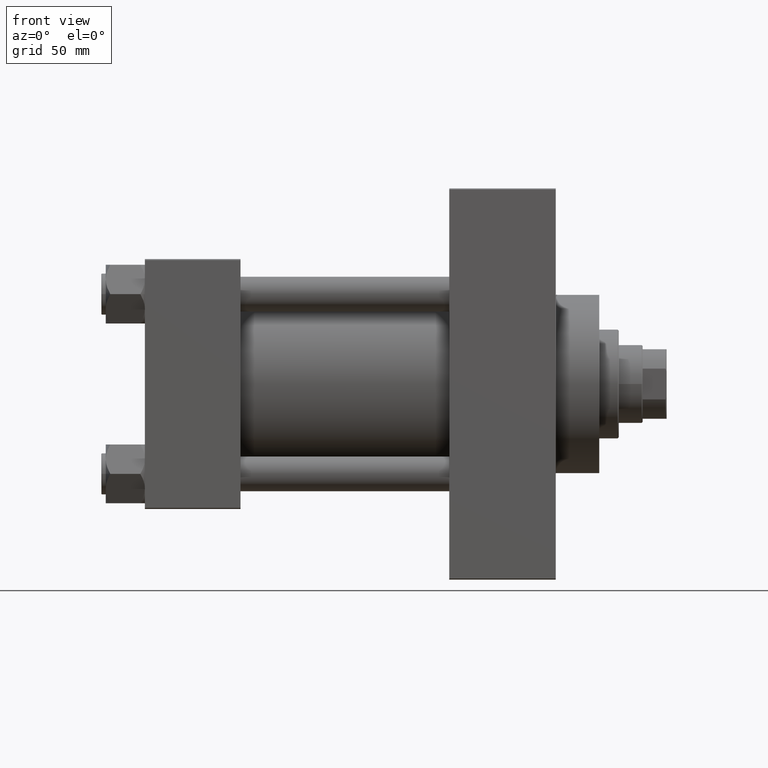
[diagram: clean part render]
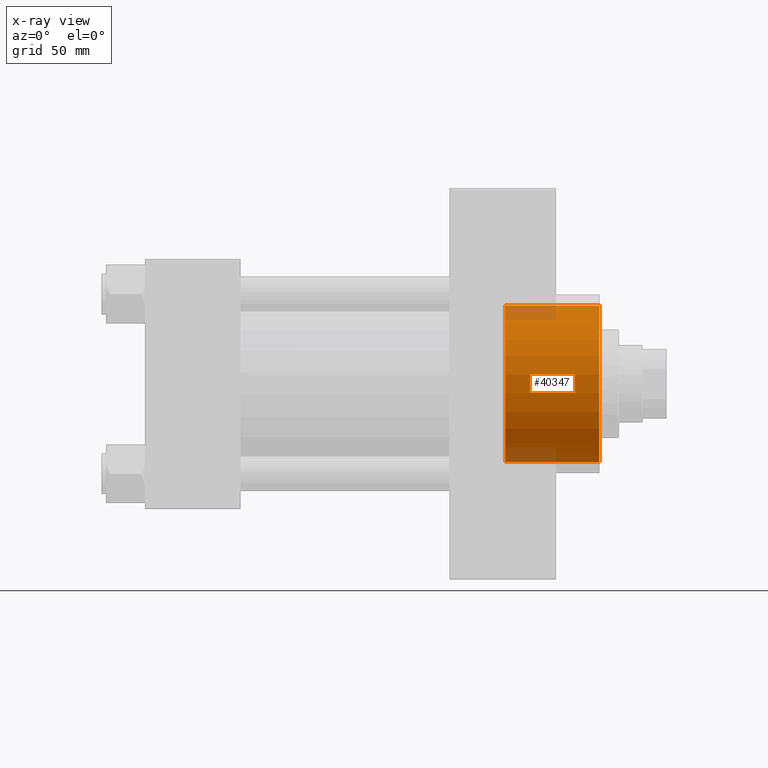
[diagram: x-ray — body ghosted, one internal face saturated and labeled with its STEP entity id]
A machine part, front view, then the same camera in x-ray: the body is ghosted and one INTERNAL B-rep face — a face not visible from any outside direction — is saturated and labeled: STEP entity #40347.
In plain terms, the highlighted cylindrical surface (partial cylindrical patch) has radius 36 mm, axis along (1, 0, 0).
Its self-contained STEP definition (entity closure, byte-faithful):
#584 = AXIS2_PLACEMENT_3D ( 'NONE', #2155, #6480, #1913 ) ;
#1205 = DIRECTION ( 'NONE',  ( 0.000000000000000000, 0.000000000000000000, -1.000000000000000000 ) ) ;
#1913 = DIRECTION ( 'NONE',  ( 0.000000000000000000, 0.000000000000000000, -1.000000000000000000 ) ) ;
#2155 = CARTESIAN_POINT ( 'NONE',  ( 209.0000000000000000, 0.000000000000000000, 0.000000000000000000 ) ) ;
#2701 = VERTEX_POINT ( 'NONE', #38880 ) ;
#3946 = EDGE_CURVE ( 'NONE', #31089, #10941, #30354, .T. ) ;
#5027 = DIRECTION ( 'NONE',  ( 1.000000000000000000, -0.000000000000000000, -0.000000000000000000 ) ) ;
#5908 = CARTESIAN_POINT ( 'NONE',  ( 209.0000000000000000, 0.000000000000000000, -36.00000000000000000 ) ) ;
#6480 = DIRECTION ( 'NONE',  ( 1.000000000000000000, 0.000000000000000000, 0.000000000000000000 ) ) ;
#7495 = CIRCLE ( 'NONE', #584, 36.00000000000000000 ) ;
#7545 = CYLINDRICAL_SURFACE ( 'NONE', #15937, 36.00000000000000000 ) ;
#9983 = DIRECTION ( 'NONE',  ( 1.000000000000000000, 0.000000000000000000, 0.000000000000000000 ) ) ;
#10472 = DIRECTION ( 'NONE',  ( 0.000000000000000000, 0.000000000000000000, -1.000000000000000000 ) ) ;
#10941 = VERTEX_POINT ( 'NONE', #24853 ) ;
#12125 = ORIENTED_EDGE ( 'NONE', *, *, #45683, .F. ) ;
#15937 = AXIS2_PLACEMENT_3D ( 'NONE', #36957, #43962, #1205 ) ;
#18129 = VECTOR ( 'NONE', #5027, 1000.000000000000000 ) ;
#19904 = ORIENTED_EDGE ( 'NONE', *, *, #36381, .F. ) ;
#20430 = ORIENTED_EDGE ( 'NONE', *, *, #3946, .T. ) ;
#21645 = CARTESIAN_POINT ( 'NONE',  ( 165.7400000000000091, 0.000000000000000000, -36.00000000000000000 ) ) ;
#24853 = CARTESIAN_POINT ( 'NONE',  ( 209.0000000000000000, 4.408728476930470856E-15, 36.00000000000000000 ) ) ;
#27897 = AXIS2_PLACEMENT_3D ( 'NONE', #39179, #9983, #10472 ) ;
#28652 = LINE ( 'NONE', #21645, #34287 ) ;
#30354 = LINE ( 'NONE', #38055, #18129 ) ;
#31089 = VERTEX_POINT ( 'NONE', #39482 ) ;
#32399 = VERTEX_POINT ( 'NONE', #5908 ) ;
#32985 = DIRECTION ( 'NONE',  ( 1.000000000000000000, -0.000000000000000000, -0.000000000000000000 ) ) ;
#34287 = VECTOR ( 'NONE', #32985, 1000.000000000000000 ) ;
#35603 = CIRCLE ( 'NONE', #27897, 36.00000000000000000 ) ;
#36381 = EDGE_CURVE ( 'NONE', #2701, #32399, #28652, .T. ) ;
#36957 = CARTESIAN_POINT ( 'NONE',  ( 165.7400000000000091, 0.000000000000000000, 0.000000000000000000 ) ) ;
#38055 = CARTESIAN_POINT ( 'NONE',  ( 165.7400000000000091, 4.408728476930470856E-15, 36.00000000000000000 ) ) ;
#38075 = FACE_OUTER_BOUND ( 'NONE', #45354, .T. ) ;
#38880 = CARTESIAN_POINT ( 'NONE',  ( 165.7400000000000091, 0.000000000000000000, -36.00000000000000000 ) ) ;
#39179 = CARTESIAN_POINT ( 'NONE',  ( 165.7400000000000091, 0.000000000000000000, 0.000000000000000000 ) ) ;
#39482 = CARTESIAN_POINT ( 'NONE',  ( 165.7400000000000091, 4.408728476930470856E-15, 36.00000000000000000 ) ) ;
#40347 = ADVANCED_FACE ( 'NONE', ( #38075 ), #7545, .F. ) ;
#40356 = EDGE_CURVE ( 'NONE', #10941, #32399, #7495, .T. ) ;
#43962 = DIRECTION ( 'NONE',  ( 1.000000000000000000, -0.000000000000000000, -0.000000000000000000 ) ) ;
#45354 = EDGE_LOOP ( 'NONE', ( #12125, #20430, #47715, #19904 ) ) ;
#45683 = EDGE_CURVE ( 'NONE', #31089, #2701, #35603, .T. ) ;
#47715 = ORIENTED_EDGE ( 'NONE', *, *, #40356, .T. ) ;